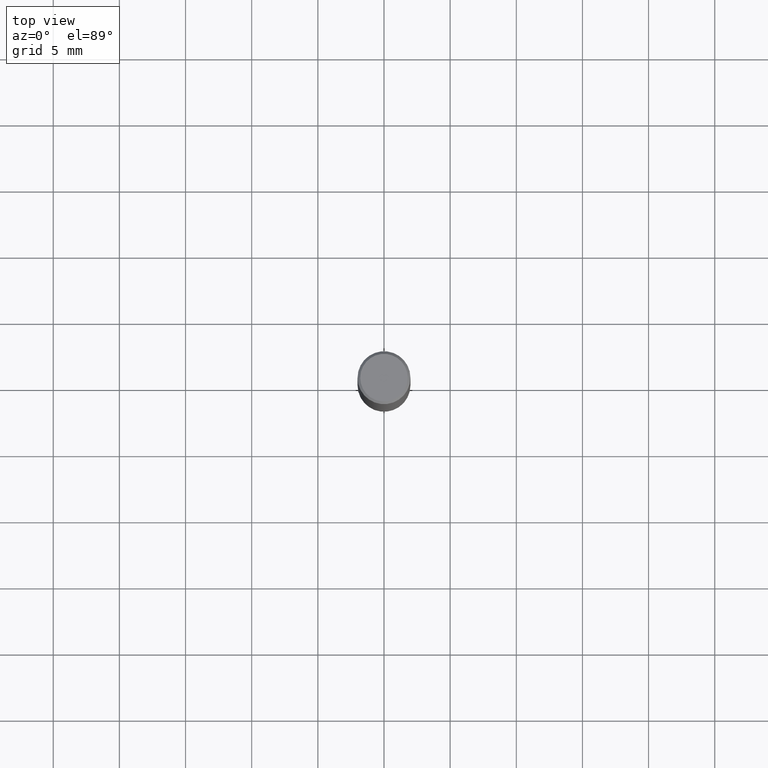
[diagram: clean part render]
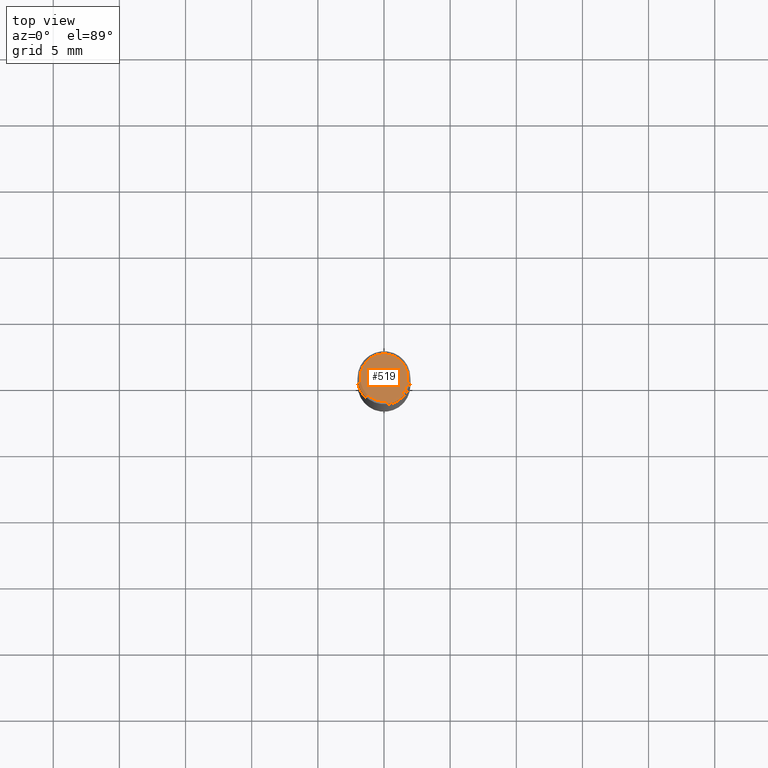
[diagram: same view with one face highlighted and labeled with its STEP entity id]
A machine part, top view. The second image highlights one B-rep face of the part: STEP entity #519.
In plain terms, the highlighted planar face has unit normal (-0, -0, 1).
Its self-contained STEP definition (entity closure, byte-faithful):
#479 = VERTEX_POINT('', #480);
#480 = CARTESIAN_POINT('', (-1.8, 1.10218211923262E-16, 0.));
#486 = EDGE_CURVE('', #479, #479, #487, .T.);
#487 = CIRCLE('', #488, 1.8);
#488 = AXIS2_PLACEMENT_3D('', #489, #490, #491);
#489 = CARTESIAN_POINT('', (0., 0., 0.));
#490 = DIRECTION('', (3.74939945665464E-33, 6.12323399573677E-17, -1.));
#491 = DIRECTION('', (-1., 6.12323399573677E-17, 0.));
#519 = ADVANCED_FACE('', (#520), #523, .T.);
#520 = FACE_OUTER_BOUND('', #521, .T.);
#521 = EDGE_LOOP('', (#522));
#522 = ORIENTED_EDGE('', *, *, #486, .F.);
#523 = PLANE('', #524);
#524 = AXIS2_PLACEMENT_3D('', #525, #526, #527);
#525 = CARTESIAN_POINT('', (2.80014285349873, -2.80014285349873, -1.71459299134626E-16));
#526 = DIRECTION('', (-3.94745964311167E-15, -4.00869198306904E-15, 1.));
#527 = DIRECTION('', (0., 1., 4.00869198306904E-15));